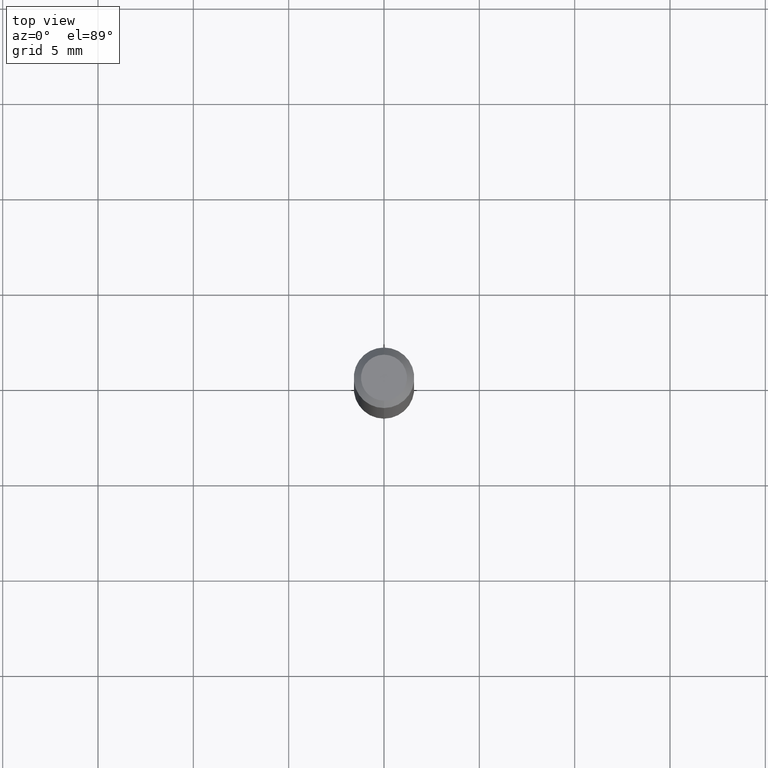
[diagram: clean part render]
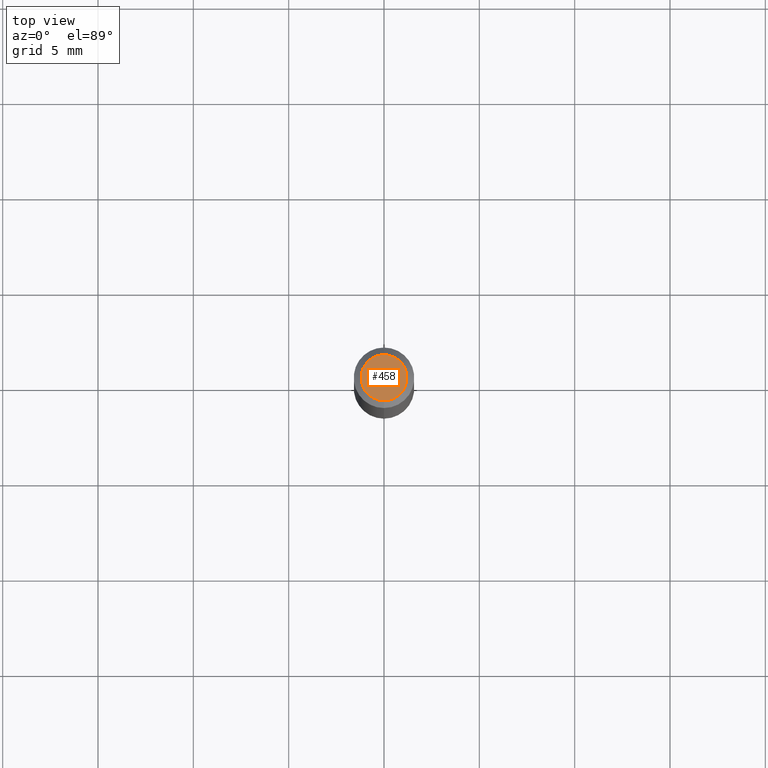
[diagram: same view with one face highlighted and labeled with its STEP entity id]
A machine part, top view. The second image highlights one B-rep face of the part: STEP entity #458.
In plain terms, the highlighted planar face has unit normal (0, -0, -1).
Its self-contained STEP definition (entity closure, byte-faithful):
#43 = AXIS2_PLACEMENT_3D ( 'NONE', #123, #246, #359 ) ;
#69 = DIRECTION ( 'NONE',  ( -2.445480475945082204E-29, 3.491464627082701746E-15, 1.000000000000000000 ) ) ;
#81 = DIRECTION ( 'NONE',  ( -2.445480475945082204E-29, 3.491464627082701746E-15, 1.000000000000000000 ) ) ;
#87 = PLANE ( 'NONE',  #43 ) ;
#103 = AXIS2_PLACEMENT_3D ( 'NONE', #158, #81, #389 ) ;
#104 = CARTESIAN_POINT ( 'NONE',  ( 2.166967981594113805E-46, -3.093826399424730180E-32, -8.861113400452178794E-18 ) ) ;
#106 = VERTEX_POINT ( 'NONE', #281 ) ;
#112 = AXIS2_PLACEMENT_3D ( 'NONE', #104, #69, #297 ) ;
#119 = EDGE_LOOP ( 'NONE', ( #150, #187 ) ) ;
#123 = CARTESIAN_POINT ( 'NONE',  ( 3.316907271900976096E-16, 0.04749999999999999362, -1.702751264866543942E-16 ) ) ;
#150 = ORIENTED_EDGE ( 'NONE', *, *, #430, .T. ) ;
#151 = EDGE_CURVE ( 'NONE', #393, #106, #208, .T. ) ;
#158 = CARTESIAN_POINT ( 'NONE',  ( 2.166967981594113805E-46, -3.093826399424730180E-32, -8.861113400452178794E-18 ) ) ;
#187 = ORIENTED_EDGE ( 'NONE', *, *, #151, .T. ) ;
#208 = CIRCLE ( 'NONE', #112, 0.04749999999999999362 ) ;
#246 = DIRECTION ( 'NONE',  ( 2.445480475945081924E-29, -3.491464627082701746E-15, -1.000000000000000000 ) ) ;
#260 = CIRCLE ( 'NONE', #103, 0.04749999999999999362 ) ;
#281 = CARTESIAN_POINT ( 'NONE',  ( 3.840629472727447874E-16, 0.04749999999999999362, -1.747056831868805136E-16 ) ) ;
#297 = DIRECTION ( 'NONE',  ( -6.982962677686266711E-15, -1.000000000000000000, 3.491464627082702140E-15 ) ) ;
#301 = CARTESIAN_POINT ( 'NONE',  ( -3.773273898774340269E-16, -0.04749999999999999362, 1.569834563859761591E-16 ) ) ;
#324 = FACE_OUTER_BOUND ( 'NONE', #119, .T. ) ;
#359 = DIRECTION ( 'NONE',  ( 6.982962677686265922E-15, 1.000000000000000000, -3.491464627082701746E-15 ) ) ;
#389 = DIRECTION ( 'NONE',  ( -6.982962677686266711E-15, -1.000000000000000000, 3.491464627082702140E-15 ) ) ;
#393 = VERTEX_POINT ( 'NONE', #301 ) ;
#430 = EDGE_CURVE ( 'NONE', #106, #393, #260, .T. ) ;
#458 = ADVANCED_FACE ( 'NONE', ( #324 ), #87, .F. ) ;